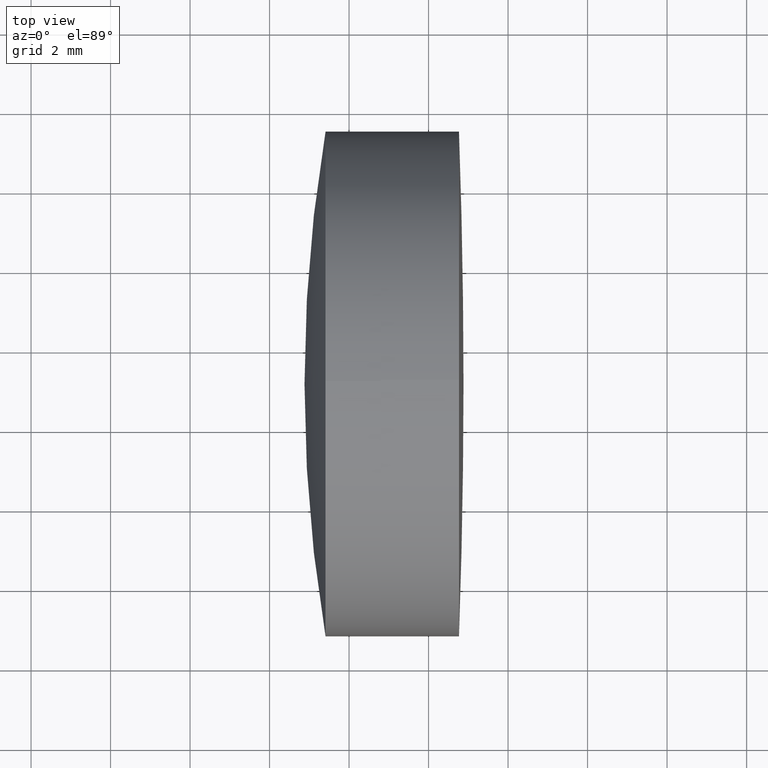
[diagram: clean part render]
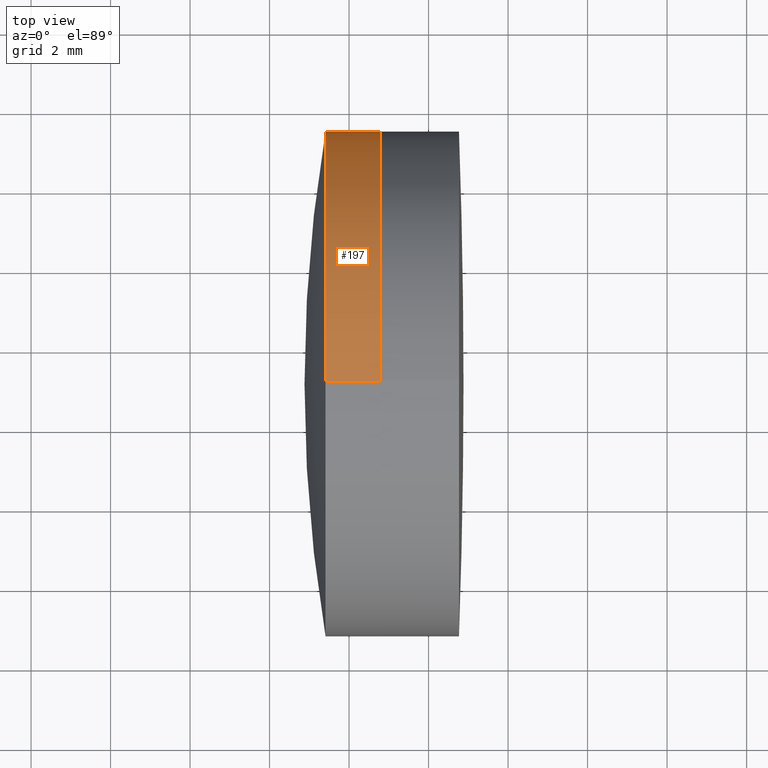
[diagram: same view with one face highlighted and labeled with its STEP entity id]
A machine part, top view. The second image highlights one B-rep face of the part: STEP entity #197.
In plain terms, the highlighted cylindrical surface (partial cylindrical patch) has radius 6.35 mm, axis along (1, -0, 0).
Its self-contained STEP definition (entity closure, byte-faithful):
#5 = ORIENTED_EDGE ( 'NONE', *, *, #420, .F. ) ;
#17 = DIRECTION ( 'NONE',  ( 1.000000000000000000, -3.773785889902083684E-17, 1.040834085586084010E-16 ) ) ;
#23 = EDGE_CURVE ( 'NONE', #251, #115, #86, .T. ) ;
#33 = CIRCLE ( 'NONE', #59, 6.349999999999997868 ) ;
#56 = CYLINDRICAL_SURFACE ( 'NONE', #244, 6.349999999999997868 ) ;
#59 = AXIS2_PLACEMENT_3D ( 'NONE', #377, #210, #445 ) ;
#70 = ORIENTED_EDGE ( 'NONE', *, *, #225, .F. ) ;
#81 = DIRECTION ( 'NONE',  ( 1.000000000000000000, -3.773785889902083684E-17, 1.040834085586084010E-16 ) ) ;
#86 = LINE ( 'NONE', #320, #179 ) ;
#92 = DIRECTION ( 'NONE',  ( 1.000000000000000000, -3.773785889902083684E-17, 1.040834085586084010E-16 ) ) ;
#107 = VERTEX_POINT ( 'NONE', #331 ) ;
#115 = VERTEX_POINT ( 'NONE', #299 ) ;
#122 = VERTEX_POINT ( 'NONE', #264 ) ;
#125 = EDGE_LOOP ( 'NONE', ( #447, #177, #5, #312, #70, #315 ) ) ;
#133 = DIRECTION ( 'NONE',  ( 1.365923996832132102E-16, 0.005445568854653865497, -0.9999851727800014300 ) ) ;
#145 = AXIS2_PLACEMENT_3D ( 'NONE', #313, #178, #369 ) ;
#152 = VECTOR ( 'NONE', #17, 1000.000000000000000 ) ;
#162 = EDGE_CURVE ( 'NONE', #175, #107, #298, .T. ) ;
#168 = DIRECTION ( 'NONE',  ( 1.024442997624099077E-16, 0.005445568854653865497, -0.9999851727800014300 ) ) ;
#175 = VERTEX_POINT ( 'NONE', #363 ) ;
#177 = ORIENTED_EDGE ( 'NONE', *, *, #23, .T. ) ;
#178 = DIRECTION ( 'NONE',  ( 1.000000000000000000, -3.773785889902083684E-17, 1.040834085586084010E-16 ) ) ;
#179 = VECTOR ( 'NONE', #81, 1000.000000000000000 ) ;
#193 = LINE ( 'NONE', #329, #152 ) ;
#195 = CIRCLE ( 'NONE', #440, 6.349999999999997868 ) ;
#197 = ADVANCED_FACE ( 'NONE', ( #235 ), #56, .T. ) ;
#198 = CARTESIAN_POINT ( 'NONE',  ( 1.407591367722822229, 7.070888747713464539, 6.349905847153010541 ) ) ;
#201 = CARTESIAN_POINT ( 'NONE',  ( 3.378360590671493302, 7.105468109940516364, 3.828966239840701631E-15 ) ) ;
#210 = DIRECTION ( 'NONE',  ( 1.000000000000000000, -3.773785889902083684E-17, 1.040834085586084010E-16 ) ) ;
#225 = EDGE_CURVE ( 'NONE', #422, #175, #193, .T. ) ;
#235 = FACE_OUTER_BOUND ( 'NONE', #125, .T. ) ;
#244 = AXIS2_PLACEMENT_3D ( 'NONE', #201, #362, #436 ) ;
#251 = VERTEX_POINT ( 'NONE', #198 ) ;
#264 = CARTESIAN_POINT ( 'NONE',  ( 1.407591367722823783, 13.45537395709352069, 0.03457936222705594587 ) ) ;
#273 = CARTESIAN_POINT ( 'NONE',  ( 1.407591367722822895, 7.105468109940516364, 3.623841861633804095E-15 ) ) ;
#276 = CARTESIAN_POINT ( 'NONE',  ( 1.407591367722823561, 7.140047472167568188, -6.349905847153003435 ) ) ;
#296 = EDGE_CURVE ( 'NONE', #122, #251, #336, .T. ) ;
#298 = CIRCLE ( 'NONE', #341, 6.349999999999997868 ) ;
#299 = CARTESIAN_POINT ( 'NONE',  ( 2.796829142949970315, 7.070888747713464539, 6.349905847153010541 ) ) ;
#312 = ORIENTED_EDGE ( 'NONE', *, *, #162, .F. ) ;
#313 = CARTESIAN_POINT ( 'NONE',  ( 1.407591367722822895, 7.105468109940516364, 3.623841861633804095E-15 ) ) ;
#315 = ORIENTED_EDGE ( 'NONE', *, *, #406, .T. ) ;
#320 = CARTESIAN_POINT ( 'NONE',  ( 3.378360590671492414, 7.070888747713464539, 6.349905847153010541 ) ) ;
#329 = CARTESIAN_POINT ( 'NONE',  ( 3.378360590671494190, 7.140047472167568188, -6.349905847153003435 ) ) ;
#331 = CARTESIAN_POINT ( 'NONE',  ( 2.796829142949972091, 13.45537395709352069, 0.03457936222705531443 ) ) ;
#336 = CIRCLE ( 'NONE', #145, 6.349999999999997868 ) ;
#341 = AXIS2_PLACEMENT_3D ( 'NONE', #402, #92, #133 ) ;
#362 = DIRECTION ( 'NONE',  ( 1.000000000000000000, -3.773785889902083684E-17, 1.040834085586084010E-16 ) ) ;
#363 = CARTESIAN_POINT ( 'NONE',  ( 2.796829142949972091, 7.140047472167568188, -6.349905847153003435 ) ) ;
#369 = DIRECTION ( 'NONE',  ( 1.024442997624099077E-16, 0.005445568854653865497, -0.9999851727800014300 ) ) ;
#377 = CARTESIAN_POINT ( 'NONE',  ( 2.796829142949971203, 7.105468109940516364, 3.768438464577824161E-15 ) ) ;
#402 = CARTESIAN_POINT ( 'NONE',  ( 2.796829142949971203, 7.105468109940516364, 3.768438464577824161E-15 ) ) ;
#406 = EDGE_CURVE ( 'NONE', #422, #122, #195, .T. ) ;
#407 = DIRECTION ( 'NONE',  ( 1.000000000000000000, -3.773785889902083684E-17, 1.040834085586084010E-16 ) ) ;
#420 = EDGE_CURVE ( 'NONE', #107, #115, #33, .T. ) ;
#422 = VERTEX_POINT ( 'NONE', #276 ) ;
#436 = DIRECTION ( 'NONE',  ( 1.365923996832132102E-16, 0.005445568854653865497, -0.9999851727800014300 ) ) ;
#440 = AXIS2_PLACEMENT_3D ( 'NONE', #273, #407, #168 ) ;
#445 = DIRECTION ( 'NONE',  ( 1.365923996832132102E-16, 0.005445568854653865497, -0.9999851727800014300 ) ) ;
#447 = ORIENTED_EDGE ( 'NONE', *, *, #296, .T. ) ;